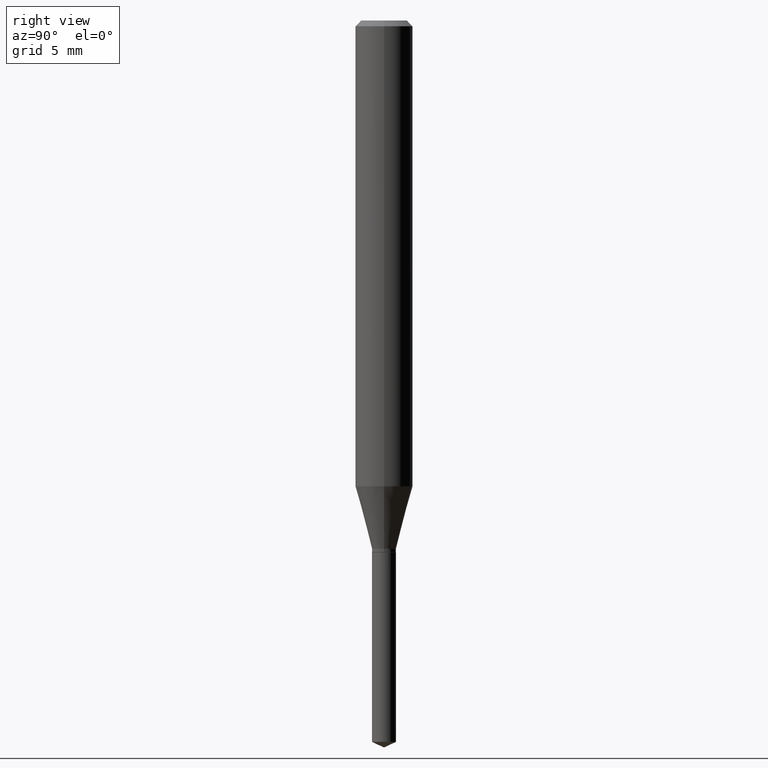
[diagram: clean part render]
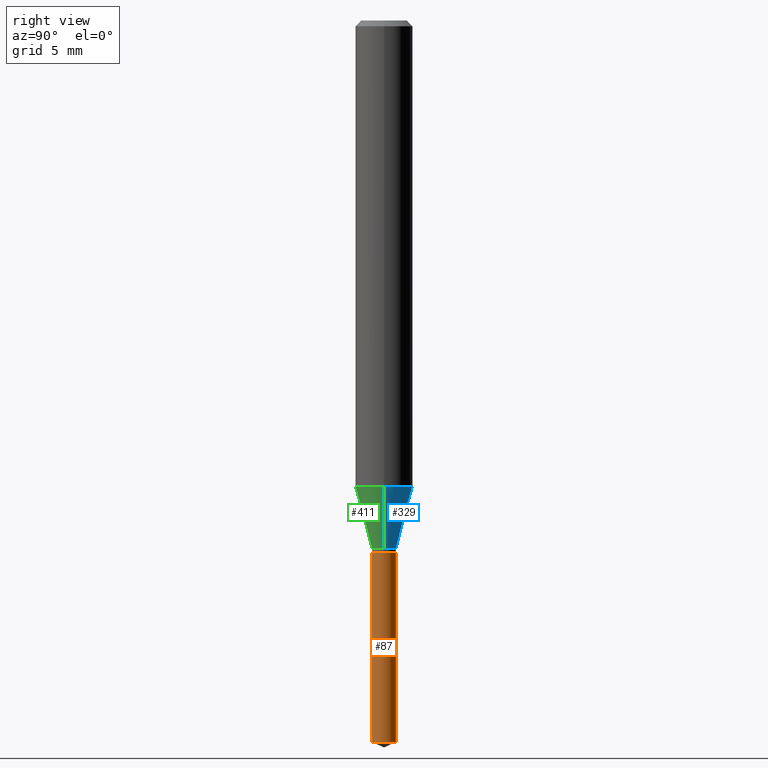
[diagram: same view with three faces highlighted in distinct colors, each labeled with its STEP entity id]
A machine part, right view with three faces highlighted in distinct colors.
Their STEP definitions:

[orange] entity #87 — the highlighted cylindrical surface (edge-blend (fillet) strip) has radius 0.6248 mm, axis along (-0, 0, 1).
#1 = CARTESIAN_POINT ( 'NONE',  ( -1.717808818710458758E-16, -0.02460000000000518716, -1.484628831609386967 ) ) ;
#4 = CIRCLE ( 'NONE', #204, 0.02460000000000000034 ) ;
#6 = CYLINDRICAL_SURFACE ( 'NONE', #12, 0.02460000000000000034 ) ;
#11 = CARTESIAN_POINT ( 'NONE',  ( 3.630614045916086260E-29, -5.183553073825791416E-15, -1.484628831609386967 ) ) ;
#12 = AXIS2_PLACEMENT_3D ( 'NONE', #348, #190, #75 ) ;
#20 = CARTESIAN_POINT ( 'NONE',  ( 1.747935129970209604E-16, 0.02459999999999618048, -1.094500000000000028 ) ) ;
#33 = LINE ( 'NONE', #337, #436 ) ;
#47 = AXIS2_PLACEMENT_3D ( 'NONE', #143, #489, #341 ) ;
#51 = VERTEX_POINT ( 'NONE', #236 ) ;
#71 = VECTOR ( 'NONE', #410, 39.37007874015748143 ) ;
#75 = DIRECTION ( 'NONE',  ( -6.982962677686265922E-15, -1.000000000000000000, 5.552536572488340164E-15 ) ) ;
#87 = ADVANCED_FACE ( 'NONE', ( #422 ), #6, .T. ) ;
#107 = LINE ( 'NONE', #330, #71 ) ;
#143 = CARTESIAN_POINT ( 'NONE',  ( 2.676565608369631794E-29, -3.821426325363822773E-15, -1.094499999999999806 ) ) ;
#152 = VERTEX_POINT ( 'NONE', #383 ) ;
#190 = DIRECTION ( 'NONE',  ( -2.445470214571802116E-29, 3.491479321953280158E-15, 1.000000000000000000 ) ) ;
#204 = AXIS2_PLACEMENT_3D ( 'NONE', #11, #440, #402 ) ;
#207 = VERTEX_POINT ( 'NONE', #20 ) ;
#208 = ORIENTED_EDGE ( 'NONE', *, *, #421, .T. ) ;
#220 = DIRECTION ( 'NONE',  ( -2.445470214571802396E-29, 3.491479321953280158E-15, 1.000000000000000000 ) ) ;
#221 = ORIENTED_EDGE ( 'NONE', *, *, #487, .F. ) ;
#229 = EDGE_CURVE ( 'NONE', #357, #51, #4, .T. ) ;
#236 = CARTESIAN_POINT ( 'NONE',  ( 1.747935129970209604E-16, 0.02459999999999482739, -1.484628831609386967 ) ) ;
#330 = CARTESIAN_POINT ( 'NONE',  ( -1.717808818710553915E-16, -0.02460000000000382020, -1.094499999999999806 ) ) ;
#337 = CARTESIAN_POINT ( 'NONE',  ( 1.747935129970113708E-16, 0.02459999999999618048, -1.094500000000000028 ) ) ;
#341 = DIRECTION ( 'NONE',  ( -6.982962677686265922E-15, -1.000000000000000000, 5.552536572488340164E-15 ) ) ;
#342 = EDGE_CURVE ( 'NONE', #357, #152, #107, .T. ) ;
#348 = CARTESIAN_POINT ( 'NONE',  ( 2.676565608369631794E-29, -3.821426325363822773E-15, -1.094499999999999806 ) ) ;
#357 = VERTEX_POINT ( 'NONE', #1 ) ;
#373 = ORIENTED_EDGE ( 'NONE', *, *, #229, .T. ) ;
#383 = CARTESIAN_POINT ( 'NONE',  ( -1.717808818710553915E-16, -0.02460000000000382020, -1.094499999999999806 ) ) ;
#401 = CIRCLE ( 'NONE', #47, 0.02460000000000000034 ) ;
#402 = DIRECTION ( 'NONE',  ( -6.982962677686265922E-15, -1.000000000000000000, 0.000000000000000000 ) ) ;
#410 = DIRECTION ( 'NONE',  ( -2.445470214571802396E-29, 3.491479321953280158E-15, 1.000000000000000000 ) ) ;
#421 = EDGE_CURVE ( 'NONE', #51, #207, #33, .T. ) ;
#422 = FACE_OUTER_BOUND ( 'NONE', #479, .T. ) ;
#436 = VECTOR ( 'NONE', #220, 39.37007874015748143 ) ;
#440 = DIRECTION ( 'NONE',  ( -2.445470214571802116E-29, 3.491479321953280158E-15, 1.000000000000000000 ) ) ;
#470 = ORIENTED_EDGE ( 'NONE', *, *, #342, .F. ) ;
#479 = EDGE_LOOP ( 'NONE', ( #373, #208, #221, #470 ) ) ;
#487 = EDGE_CURVE ( 'NONE', #152, #207, #401, .T. ) ;
#489 = DIRECTION ( 'NONE',  ( -2.445470214571802116E-29, 3.491479321953280158E-15, 1.000000000000000000 ) ) ;

[blue] entity #329 — the highlighted conical surface has half-angle 15 deg.
#3 = VECTOR ( 'NONE', #385, 39.37007874015747433 ) ;
#19 = EDGE_CURVE ( 'NONE', #443, #109, #227, .T. ) ;
#36 = CARTESIAN_POINT ( 'NONE',  ( 0.05905000000000011628, -3.759036520477947429E-15, -0.9585308496792520616 ) ) ;
#48 = ORIENTED_EDGE ( 'NONE', *, *, #19, .T. ) ;
#62 = AXIS2_PLACEMENT_3D ( 'NONE', #488, #308, #121 ) ;
#66 = CARTESIAN_POINT ( 'NONE',  ( 2.658469139203861920E-29, -3.795589363456383732E-15, -1.087099999999999955 ) ) ;
#92 = AXIS2_PLACEMENT_3D ( 'NONE', #66, #182, #104 ) ;
#94 = VERTEX_POINT ( 'NONE', #114 ) ;
#97 = CIRCLE ( 'NONE', #484, 0.02460000000000000034 ) ;
#98 = CARTESIAN_POINT ( 'NONE',  ( 2.658469139203861920E-29, -3.795589363456383732E-15, -1.087099999999999955 ) ) ;
#104 = DIRECTION ( 'NONE',  ( 1.000000000000000000, -6.982962677686261977E-15, 0.000000000000000000 ) ) ;
#106 = ORIENTED_EDGE ( 'NONE', *, *, #451, .F. ) ;
#109 = VERTEX_POINT ( 'NONE', #157 ) ;
#111 = EDGE_CURVE ( 'NONE', #163, #109, #312, .T. ) ;
#114 = CARTESIAN_POINT ( 'NONE',  ( 0.02460000000000000034, -3.967370245327465994E-15, -1.087099999999999955 ) ) ;
#121 = DIRECTION ( 'NONE',  ( 1.000000000000000000, -6.982962677686266711E-15, 0.000000000000000000 ) ) ;
#157 = CARTESIAN_POINT ( 'NONE',  ( -0.05905000000000011628, -2.927117088894233016E-15, -0.9585308496792520616 ) ) ;
#163 = VERTEX_POINT ( 'NONE', #36 ) ;
#182 = DIRECTION ( 'NONE',  ( -2.445468806185136597E-29, 3.491481338843145583E-15, 1.000000000000000000 ) ) ;
#184 = EDGE_CURVE ( 'NONE', #94, #443, #97, .T. ) ;
#198 = CARTESIAN_POINT ( 'NONE',  ( -0.02460000000000000034, -3.620795850459399404E-15, -1.087099999999999955 ) ) ;
#222 = FACE_OUTER_BOUND ( 'NONE', #291, .T. ) ;
#227 = LINE ( 'NONE', #198, #3 ) ;
#249 = DIRECTION ( 'NONE',  ( -2.445468806185136597E-29, 3.491481338843145583E-15, 1.000000000000000000 ) ) ;
#252 = ORIENTED_EDGE ( 'NONE', *, *, #111, .F. ) ;
#262 = CARTESIAN_POINT ( 'NONE',  ( -0.02460000000000000034, -3.632841461078407384E-15, -1.087099999999999955 ) ) ;
#266 = CARTESIAN_POINT ( 'NONE',  ( 0.02460000000000000034, -3.967370245327465994E-15, -1.087099999999999955 ) ) ;
#289 = ORIENTED_EDGE ( 'NONE', *, *, #184, .T. ) ;
#291 = EDGE_LOOP ( 'NONE', ( #289, #48, #252, #106 ) ) ;
#308 = DIRECTION ( 'NONE',  ( -2.445468806185136597E-29, 3.491481338843145583E-15, 1.000000000000000000 ) ) ;
#312 = CIRCLE ( 'NONE', #62, 0.05905000000000011628 ) ;
#317 = VECTOR ( 'NONE', #418, 39.37007874015747433 ) ;
#329 = ADVANCED_FACE ( 'NONE', ( #222 ), #458, .T. ) ;
#339 = LINE ( 'NONE', #266, #317 ) ;
#364 = DIRECTION ( 'NONE',  ( 1.000000000000000000, -6.982962677686261977E-15, 0.000000000000000000 ) ) ;
#385 = DIRECTION ( 'NONE',  ( -0.2588190451025213501, 5.211531920934551042E-15, 0.9659258262890682012 ) ) ;
#418 = DIRECTION ( 'NONE',  ( 0.2588190451025213501, 1.565188264969621968E-15, 0.9659258262890682012 ) ) ;
#443 = VERTEX_POINT ( 'NONE', #262 ) ;
#451 = EDGE_CURVE ( 'NONE', #94, #163, #339, .T. ) ;
#458 = CONICAL_SURFACE ( 'NONE', #92, 0.02460000000000000034, 0.2617993877991500740 ) ;
#484 = AXIS2_PLACEMENT_3D ( 'NONE', #98, #249, #364 ) ;
#488 = CARTESIAN_POINT ( 'NONE',  ( 2.344057292656745100E-29, -3.346692574360572903E-15, -0.9585308496792520616 ) ) ;

[green] entity #411 — the highlighted conical surface has half-angle 15 deg.
#3 = VECTOR ( 'NONE', #385, 39.37007874015747433 ) ;
#14 = ORIENTED_EDGE ( 'NONE', *, *, #451, .T. ) ;
#19 = EDGE_CURVE ( 'NONE', #443, #109, #227, .T. ) ;
#29 = ORIENTED_EDGE ( 'NONE', *, *, #56, .F. ) ;
#35 = DIRECTION ( 'NONE',  ( -2.445468806185136597E-29, 3.491481338843145583E-15, 1.000000000000000000 ) ) ;
#36 = CARTESIAN_POINT ( 'NONE',  ( 0.05905000000000011628, -3.759036520477947429E-15, -0.9585308496792520616 ) ) ;
#56 = EDGE_CURVE ( 'NONE', #109, #163, #434, .T. ) ;
#70 = DIRECTION ( 'NONE',  ( 1.000000000000000000, -6.982962677686261977E-15, 0.000000000000000000 ) ) ;
#72 = DIRECTION ( 'NONE',  ( 1.000000000000000000, -6.982962677686266711E-15, 0.000000000000000000 ) ) ;
#82 = EDGE_LOOP ( 'NONE', ( #318, #323, #14, #29 ) ) ;
#94 = VERTEX_POINT ( 'NONE', #114 ) ;
#109 = VERTEX_POINT ( 'NONE', #157 ) ;
#114 = CARTESIAN_POINT ( 'NONE',  ( 0.02460000000000000034, -3.967370245327465994E-15, -1.087099999999999955 ) ) ;
#125 = DIRECTION ( 'NONE',  ( -2.445468806185136597E-29, 3.491481338843145583E-15, 1.000000000000000000 ) ) ;
#157 = CARTESIAN_POINT ( 'NONE',  ( -0.05905000000000011628, -2.927117088894233016E-15, -0.9585308496792520616 ) ) ;
#163 = VERTEX_POINT ( 'NONE', #36 ) ;
#198 = CARTESIAN_POINT ( 'NONE',  ( -0.02460000000000000034, -3.620795850459399404E-15, -1.087099999999999955 ) ) ;
#224 = CARTESIAN_POINT ( 'NONE',  ( 2.658469139203861920E-29, -3.795589363456383732E-15, -1.087099999999999955 ) ) ;
#227 = LINE ( 'NONE', #198, #3 ) ;
#253 = CARTESIAN_POINT ( 'NONE',  ( 2.658469139203861920E-29, -3.795589363456383732E-15, -1.087099999999999955 ) ) ;
#262 = CARTESIAN_POINT ( 'NONE',  ( -0.02460000000000000034, -3.632841461078407384E-15, -1.087099999999999955 ) ) ;
#266 = CARTESIAN_POINT ( 'NONE',  ( 0.02460000000000000034, -3.967370245327465994E-15, -1.087099999999999955 ) ) ;
#274 = AXIS2_PLACEMENT_3D ( 'NONE', #428, #125, #72 ) ;
#317 = VECTOR ( 'NONE', #418, 39.37007874015747433 ) ;
#318 = ORIENTED_EDGE ( 'NONE', *, *, #19, .F. ) ;
#319 = EDGE_CURVE ( 'NONE', #443, #94, #449, .T. ) ;
#323 = ORIENTED_EDGE ( 'NONE', *, *, #319, .T. ) ;
#336 = AXIS2_PLACEMENT_3D ( 'NONE', #224, #380, #483 ) ;
#339 = LINE ( 'NONE', #266, #317 ) ;
#361 = CONICAL_SURFACE ( 'NONE', #336, 0.02460000000000000034, 0.2617993877991500740 ) ;
#380 = DIRECTION ( 'NONE',  ( -2.445468806185136597E-29, 3.491481338843145583E-15, 1.000000000000000000 ) ) ;
#385 = DIRECTION ( 'NONE',  ( -0.2588190451025213501, 5.211531920934551042E-15, 0.9659258262890682012 ) ) ;
#394 = AXIS2_PLACEMENT_3D ( 'NONE', #253, #35, #70 ) ;
#411 = ADVANCED_FACE ( 'NONE', ( #415 ), #361, .T. ) ;
#415 = FACE_OUTER_BOUND ( 'NONE', #82, .T. ) ;
#418 = DIRECTION ( 'NONE',  ( 0.2588190451025213501, 1.565188264969621968E-15, 0.9659258262890682012 ) ) ;
#428 = CARTESIAN_POINT ( 'NONE',  ( 2.344057292656745100E-29, -3.346692574360572903E-15, -0.9585308496792520616 ) ) ;
#434 = CIRCLE ( 'NONE', #274, 0.05905000000000011628 ) ;
#443 = VERTEX_POINT ( 'NONE', #262 ) ;
#449 = CIRCLE ( 'NONE', #394, 0.02460000000000000034 ) ;
#451 = EDGE_CURVE ( 'NONE', #94, #163, #339, .T. ) ;
#483 = DIRECTION ( 'NONE',  ( 1.000000000000000000, -6.982962677686261977E-15, 0.000000000000000000 ) ) ;